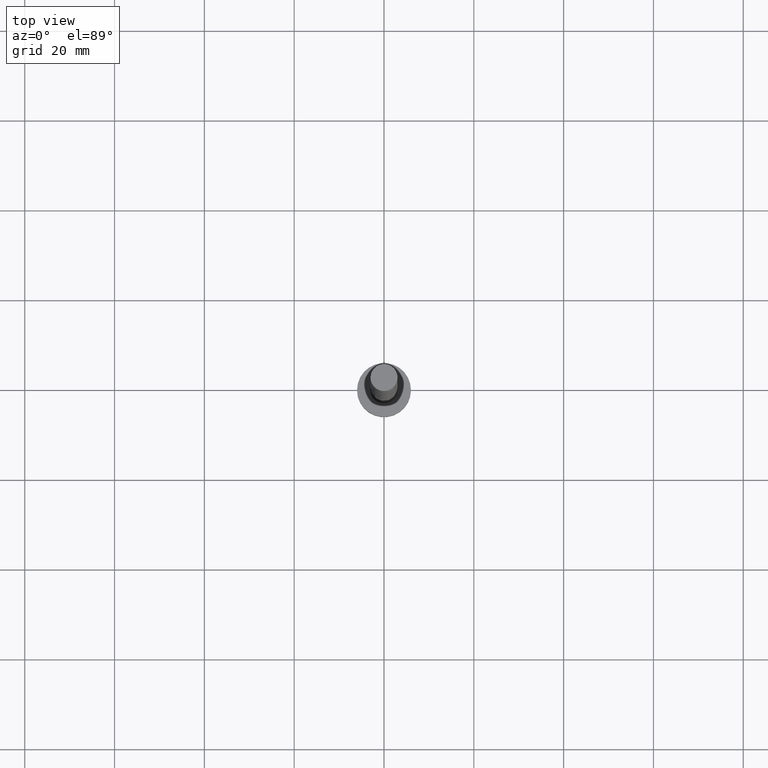
[diagram: clean part render]
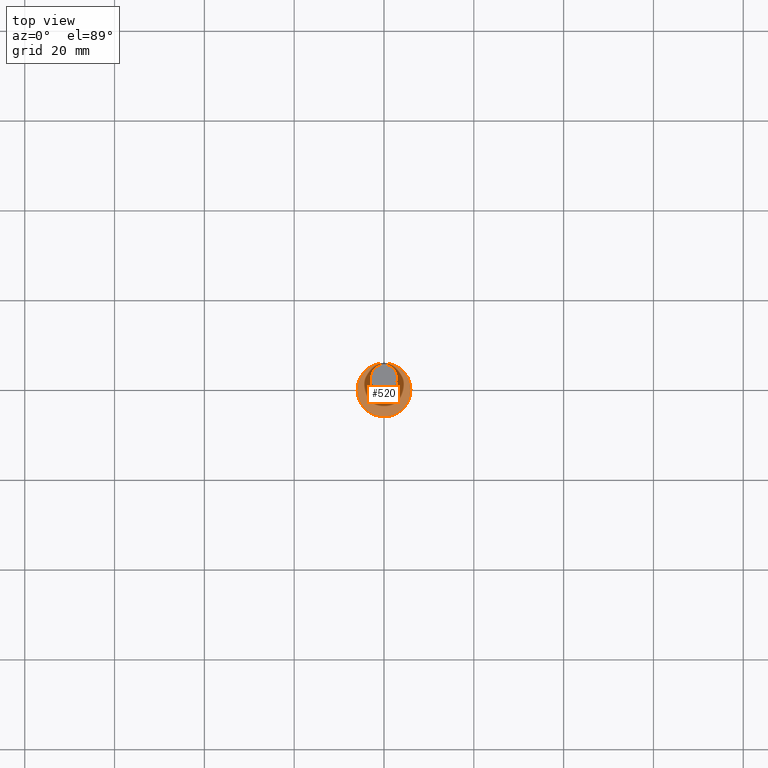
[diagram: same view with one face highlighted and labeled with its STEP entity id]
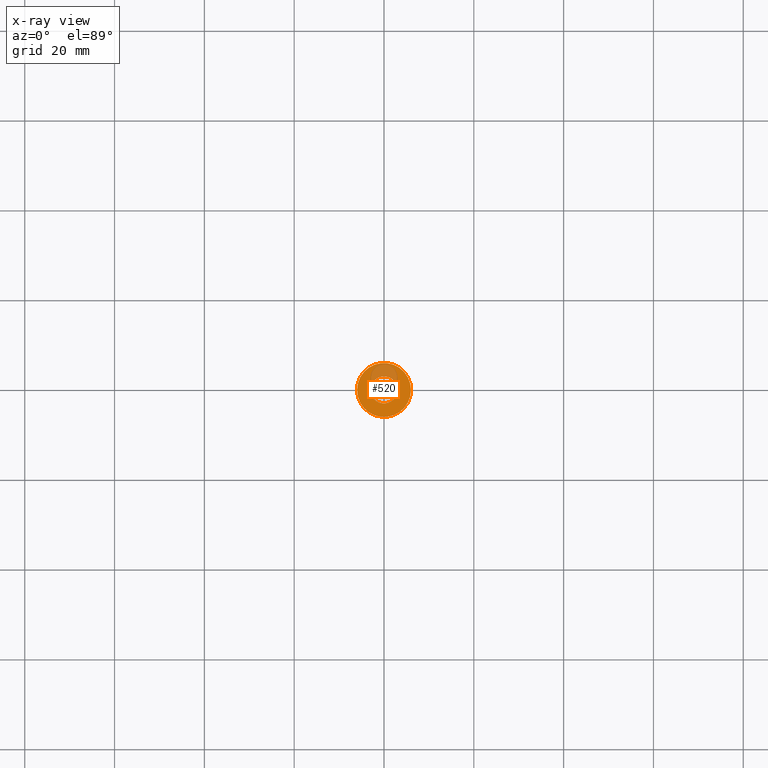
[diagram: x-ray of the same camera — body ghosted, the highlighted face saturated]
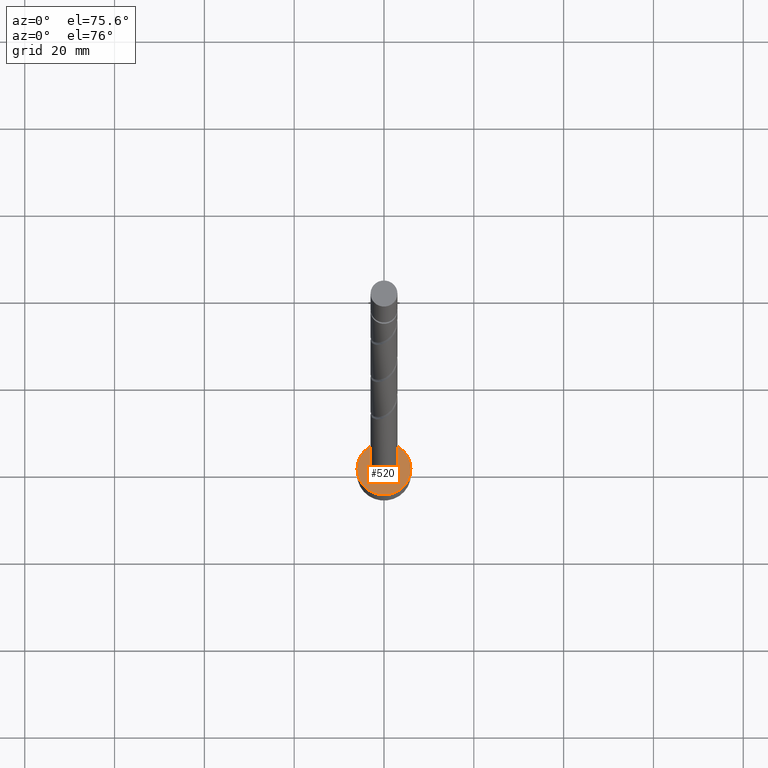
[diagram: same view with one face highlighted and labeled with its STEP entity id]
A machine part, top view. The second image highlights one B-rep face of the part: STEP entity #520.
The next image is the same camera in x-ray: the body ghosted, the highlighted face saturated — about 20% of this face is hidden behind the body in this view.
A second angle (auxiliary view) of the same face is appended — the face is thin or edge-on in the first view.
In plain terms, the highlighted planar face has unit normal (0, 0, 1).
Its self-contained STEP definition (entity closure, byte-faithful):
#13 = VERTEX_POINT ( 'NONE', #1119 ) ;
#30 = EDGE_CURVE ( 'NONE', #1408, #907, #1541, .T. ) ;
#67 = ORIENTED_EDGE ( 'NONE', *, *, #347, .T. ) ;
#105 = AXIS2_PLACEMENT_3D ( 'NONE', #844, #540, #482 ) ;
#269 = CARTESIAN_POINT ( 'NONE',  ( 3.000000000000000444, 3.673940397442060361E-16, 5.000000000000000000 ) ) ;
#319 = EDGE_LOOP ( 'NONE', ( #599, #841 ) ) ;
#346 = DIRECTION ( 'NONE',  ( 1.000000000000000000, 0.000000000000000000, -0.000000000000000000 ) ) ;
#347 = EDGE_CURVE ( 'NONE', #13, #872, #850, .T. ) ;
#381 = DIRECTION ( 'NONE',  ( 0.000000000000000000, 0.000000000000000000, 1.000000000000000000 ) ) ;
#384 = CARTESIAN_POINT ( 'NONE',  ( 0.000000000000000000, 0.000000000000000000, 5.000000000000000000 ) ) ;
#430 = CARTESIAN_POINT ( 'NONE',  ( 0.000000000000000000, 0.000000000000000000, 5.000000000000000000 ) ) ;
#447 = CIRCLE ( 'NONE', #821, 6.000000000000000888 ) ;
#464 = ORIENTED_EDGE ( 'NONE', *, *, #1138, .T. ) ;
#482 = DIRECTION ( 'NONE',  ( 1.000000000000000000, 0.000000000000000000, 0.000000000000000000 ) ) ;
#517 = DIRECTION ( 'NONE',  ( 1.000000000000000000, 0.000000000000000000, 0.000000000000000000 ) ) ;
#520 = ADVANCED_FACE ( 'NONE', ( #657, #528 ), #1055, .T. ) ;
#528 = FACE_OUTER_BOUND ( 'NONE', #1095, .T. ) ;
#540 = DIRECTION ( 'NONE',  ( 0.000000000000000000, 0.000000000000000000, 1.000000000000000000 ) ) ;
#599 = ORIENTED_EDGE ( 'NONE', *, *, #1007, .F. ) ;
#654 = CARTESIAN_POINT ( 'NONE',  ( 0.000000000000000000, 0.000000000000000000, 5.000000000000000000 ) ) ;
#657 = FACE_BOUND ( 'NONE', #319, .T. ) ;
#765 = DIRECTION ( 'NONE',  ( 1.000000000000000000, 0.000000000000000000, 0.000000000000000000 ) ) ;
#821 = AXIS2_PLACEMENT_3D ( 'NONE', #877, #1146, #765 ) ;
#841 = ORIENTED_EDGE ( 'NONE', *, *, #30, .F. ) ;
#844 = CARTESIAN_POINT ( 'NONE',  ( 0.000000000000000000, 0.000000000000000000, 5.000000000000000000 ) ) ;
#850 = CIRCLE ( 'NONE', #1071, 6.000000000000000888 ) ;
#872 = VERTEX_POINT ( 'NONE', #966 ) ;
#877 = CARTESIAN_POINT ( 'NONE',  ( 0.000000000000000000, 0.000000000000000000, 5.000000000000000000 ) ) ;
#907 = VERTEX_POINT ( 'NONE', #1233 ) ;
#925 = DIRECTION ( 'NONE',  ( 0.000000000000000000, 0.000000000000000000, 1.000000000000000000 ) ) ;
#930 = AXIS2_PLACEMENT_3D ( 'NONE', #384, #925, #346 ) ;
#966 = CARTESIAN_POINT ( 'NONE',  ( 6.000000000000000888, 7.347880794884120722E-16, 5.000000000000000000 ) ) ;
#1007 = EDGE_CURVE ( 'NONE', #907, #1408, #1271, .T. ) ;
#1055 = PLANE ( 'NONE',  #930 ) ;
#1071 = AXIS2_PLACEMENT_3D ( 'NONE', #654, #381, #517 ) ;
#1095 = EDGE_LOOP ( 'NONE', ( #67, #464 ) ) ;
#1119 = CARTESIAN_POINT ( 'NONE',  ( -6.000000000000000888, 0.000000000000000000, 5.000000000000000000 ) ) ;
#1138 = EDGE_CURVE ( 'NONE', #872, #13, #447, .T. ) ;
#1146 = DIRECTION ( 'NONE',  ( 0.000000000000000000, 0.000000000000000000, 1.000000000000000000 ) ) ;
#1233 = CARTESIAN_POINT ( 'NONE',  ( -3.000000000000000444, 0.000000000000000000, 5.000000000000000000 ) ) ;
#1250 = DIRECTION ( 'NONE',  ( 0.000000000000000000, 0.000000000000000000, 1.000000000000000000 ) ) ;
#1271 = CIRCLE ( 'NONE', #105, 3.000000000000000444 ) ;
#1363 = DIRECTION ( 'NONE',  ( 1.000000000000000000, 0.000000000000000000, 0.000000000000000000 ) ) ;
#1408 = VERTEX_POINT ( 'NONE', #269 ) ;
#1439 = AXIS2_PLACEMENT_3D ( 'NONE', #430, #1250, #1363 ) ;
#1541 = CIRCLE ( 'NONE', #1439, 3.000000000000000444 ) ;